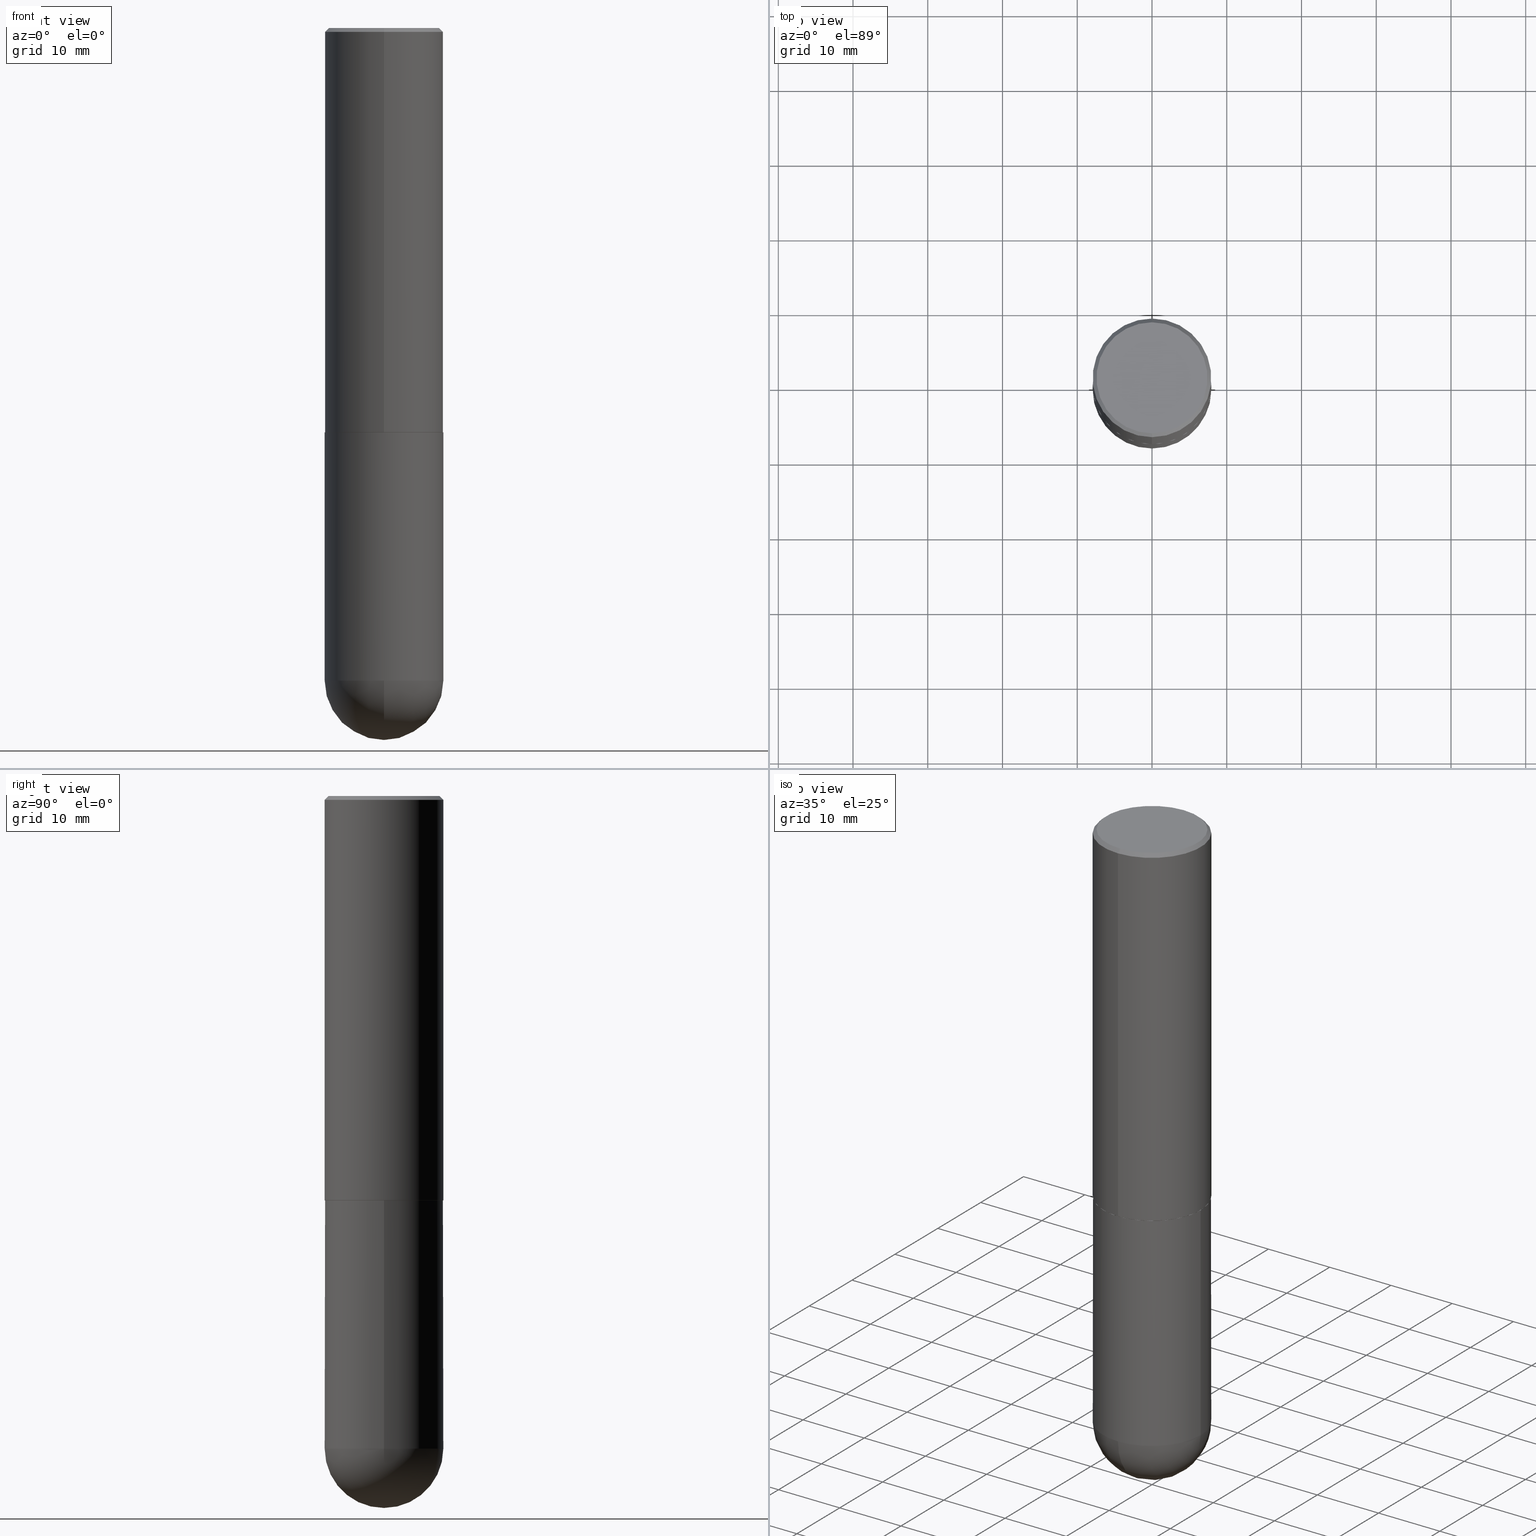
[diagram: canonical four-view strip — front | top / right | iso, engineering-drawing reading convention]
A machine part, canonical four-view strip (front | top / right | iso — engineering-drawing reading convention). The complete STEP part file that produces these views, byte-faithful:
ISO-10303-21;
HEADER;
FILE_DESCRIPTION (( 'STEP AP203' ),
    '1' );
FILE_NAME ('34675.STEP',
    '2024-02-21T18:19:25',
    ( '' ),
    ( '' ),
    'SwSTEP 2.0',
    'SolidWorks 2023',
    '' );
FILE_SCHEMA (( 'CONFIG_CONTROL_DESIGN' ));
ENDSEC;

DATA;
#1 = CARTESIAN_POINT ( 'NONE',  ( 2.182175836776958741E-15, 0.3124999999999999445, -0.02000000000000116268 ) ) ;
#2 = EDGE_CURVE ( 'NONE', #362, #18, #363, .T. ) ;
#3 = ORIENTED_EDGE ( 'NONE', *, *, #68, .T. ) ;
#4 = CYLINDRICAL_SURFACE ( 'NONE', #42, 0.3125000000000000000 ) ;
#5 = DIRECTION ( 'NONE',  ( 6.982962677686265922E-15, 1.000000000000000000, -3.496765431890253764E-15 ) ) ;
#6 = DIRECTION ( 'NONE',  ( -6.982962677686265922E-15, -1.000000000000000000, 3.496765431890253764E-15 ) ) ;
#7 = CC_DESIGN_APPROVAL ( #188, ( #58 ) ) ;
#8 = DIRECTION ( 'NONE',  ( -6.982962677686265922E-15, -1.000000000000000000, 3.507991003100177457E-15 ) ) ;
#9 = ADVANCED_FACE ( 'NONE', ( #399 ), #370, .T. ) ;
#10 = DATE_AND_TIME ( #115, #195 ) ;
#11 = MANIFOLD_SOLID_BREP ( 'Body-Move/Copy2[2]', #194 ) ;
#12 = VERTEX_POINT ( 'NONE', #248 ) ;
#13 = PERSON_AND_ORGANIZATION_ROLE ( 'creator' ) ;
#14 = EDGE_LOOP ( 'NONE', ( #275, #274, #273, #249 ) ) ;
#15 = VECTOR ( 'NONE', #30, 39.37007874015748143 ) ;
#16 = AXIS2_PLACEMENT_3D ( 'NONE', #408, #123, #171 ) ;
#17 = DIRECTION ( 'NONE',  ( -2.445875633042326285E-29, 3.490898739628503130E-15, 1.000000000000000000 ) ) ;
#18 = VERTEX_POINT ( 'NONE', #240 ) ;
#19 = PRODUCT_DEFINITION ( 'UNKNOWN', '', #58, #232 ) ;
#20 = VERTEX_POINT ( 'NONE', #322 ) ;
#21 = APPROVAL_ROLE ( '' ) ;
#22 = ORIENTED_EDGE ( 'NONE', *, *, #158, .F. ) ;
#23 = CIRCLE ( 'NONE', #390, 0.3125000000000000000 ) ;
#24 = ADVANCED_FACE ( 'NONE', ( #128 ), #246, .T. ) ;
#25 = CARTESIAN_POINT ( 'NONE',  ( 2.213340621892763743E-15, 0.3114999999999925606, -2.130000000000001226 ) ) ;
#26 = FACE_OUTER_BOUND ( 'NONE', #130, .T. ) ;
#27 = CARTESIAN_POINT ( 'NONE',  ( 0.3125000000000000000, -2.182175836776958347E-15, 1.523805242436230075E-29 ) ) ;
#28 = AXIS2_PLACEMENT_3D ( 'NONE', #295, #69, #6 ) ;
#29 = LINE ( 'NONE', #356, #150 ) ;
#30 = DIRECTION ( 'NONE',  ( -4.851104656540956386E-15, -0.7071067811865489050, -0.7071067811865461294 ) ) ;
#31 = DIRECTION ( 'NONE',  ( -6.982962677686265133E-15, -1.000000000000000000, 3.490898739628502736E-15 ) ) ;
#32 = AXIS2_PLACEMENT_3D ( 'NONE', #157, #405, #60 ) ;
#33 = DIRECTION ( 'NONE',  ( 4.937700262164540154E-15, 0.7071067811865440200, -0.7071067811865510144 ) ) ;
#34 = AXIS2_PLACEMENT_3D ( 'NONE', #37, #326, #231 ) ;
#35 = CALENDAR_DATE ( 2024, 21, 2 ) ;
#36 = DIRECTION ( 'NONE',  ( -2.445468806185136597E-29, 3.491481338843145583E-15, 1.000000000000000000 ) ) ;
#37 = CARTESIAN_POINT ( 'NONE',  ( -6.259982390047001361E-45, 8.934618073090526033E-31, 2.559403391357417530E-16 ) ) ;
#38 = EDGE_CURVE ( 'NONE', #12, #18, #178, .T. ) ;
#39 = CC_DESIGN_PERSON_AND_ORGANIZATION_ASSIGNMENT ( #67, #122, ( #247 ) ) ;
#40 = CARTESIAN_POINT ( 'NONE',  ( 5.209715098380154570E-29, -7.435614315408711356E-15, -2.129999999999999893 ) ) ;
#41 = AXIS2_PLACEMENT_3D ( 'NONE', #287, #222, #224 ) ;
#42 = AXIS2_PLACEMENT_3D ( 'NONE', #72, #201, #261 ) ;
#43 = DIRECTION ( 'NONE',  ( -2.445468806185136597E-29, 3.491481338843145583E-15, 1.000000000000000000 ) ) ;
#44 = CARTESIAN_POINT ( 'NONE',  ( -0.3125000000000000000, -7.498965127754292608E-15, -2.129999999999999893 ) ) ;
#45 = EDGE_CURVE ( 'NONE', #20, #86, #104, .T. ) ;
#46 = DIRECTION ( 'NONE',  ( -7.105427357601000281E-15, -1.000000000000000000, 0.000000000000000000 ) ) ;
#47 = CC_DESIGN_DATE_AND_TIME_ASSIGNMENT ( #351, #153, ( #247 ) ) ;
#48 = CALENDAR_DATE ( 2024, 21, 2 ) ;
#49 = ORIENTED_EDGE ( 'NONE', *, *, #254, .T. ) ;
#50 = EDGE_CURVE ( 'NONE', #225, #53, #318, .T. ) ;
#51 = CIRCLE ( 'NONE', #271, 0.2924999999999997602 ) ;
#52 = DIRECTION ( 'NONE',  ( -2.445468806185136597E-29, 3.491481338843145583E-15, 1.000000000000000000 ) ) ;
#53 = VERTEX_POINT ( 'NONE', #380 ) ;
#54 = ORIENTED_EDGE ( 'NONE', *, *, #303, .F. ) ;
#55 = ADVANCED_FACE ( 'NONE', ( #353 ), #61, .T. ) ;
#56 = CARTESIAN_POINT ( 'NONE',  ( 4.891751266084669456E-31, -6.981797479257029532E-17, -0.02000000000000006981 ) ) ;
#57 = VECTOR ( 'NONE', #62, 39.37007874015748143 ) ;
#58 = PRODUCT_DEFINITION_FORMATION_WITH_SPECIFIED_SOURCE ( 'ANY', '', #96, .NOT_KNOWN. ) ;
#59 = COORDINATED_UNIVERSAL_TIME_OFFSET ( 5, 0, .BEHIND. ) ;
#60 = DIRECTION ( 'NONE',  ( 1.000000000000000000, -6.982962677686265133E-15, 0.000000000000000000 ) ) ;
#61 = CYLINDRICAL_SURFACE ( 'NONE', #406, 0.3125000000000001665 ) ;
#62 = DIRECTION ( 'NONE',  ( -2.445875633042326005E-29, 3.490898739628503130E-15, 1.000000000000000000 ) ) ;
#63 = CC_DESIGN_APPROVAL ( #371, ( #247 ) ) ;
#64 = LOCAL_TIME ( 13, 19, 25.00000000000000000, #402 ) ;
#65 = DIRECTION ( 'NONE',  ( -1.000000000000000000, 6.982962677686265922E-15, -4.876176775795935793E-29 ) ) ;
#66 = SPHERICAL_SURFACE ( 'NONE', #395, 0.3125000000000002776 ) ;
#67 = PERSON_AND_ORGANIZATION ( #206, #179 ) ;
#68 = EDGE_CURVE ( 'NONE', #172, #86, #352, .T. ) ;
#69 = DIRECTION ( 'NONE',  ( -2.445875633042326285E-29, 3.490898739628503130E-15, 1.000000000000000000 ) ) ;
#70 = LINE ( 'NONE', #1, #204 ) ;
#71 = AXIS2_PLACEMENT_3D ( 'NONE', #219, #288, #349 ) ;
#72 = CARTESIAN_POINT ( 'NONE',  ( 0.000000000000000000, 0.000000000000000000, 0.000000000000000000 ) ) ;
#73 = ADVANCED_FACE ( 'NONE', ( #355 ), #94, .T. ) ;
#74 = CARTESIAN_POINT ( 'NONE',  ( 8.406299021261405930E-29, -1.200196710227331114E-14, -3.437499999999999556 ) ) ;
#75 = LENGTH_MEASURE_WITH_UNIT ( LENGTH_MEASURE( 0.02539999999999999897 ), #210 );
#76 = EDGE_CURVE ( 'NONE', #396, #172, #132, .T. ) ;
#77 = PERSON_AND_ORGANIZATION_ROLE ( 'creator' ) ;
#78 = ORIENTED_EDGE ( 'NONE', *, *, #124, .F. ) ;
#79 = EDGE_LOOP ( 'NONE', ( #78, #203, #306, #366 ) ) ;
#80 =( CONVERSION_BASED_UNIT ( 'INCH', #75 ) LENGTH_UNIT ( ) NAMED_UNIT ( #412 ) );
#81 = ORIENTED_EDGE ( 'NONE', *, *, #76, .F. ) ;
#82 = VECTOR ( 'NONE', #223, 39.37007874015748854 ) ;
#83 = CIRCLE ( 'NONE', #28, 0.3125000000000002776 ) ;
#84 = APPLICATION_PROTOCOL_DEFINITION ( 'international standard', 'config_control_design', 1994, #323 ) ;
#85 = EDGE_LOOP ( 'NONE', ( #109, #311 ) ) ;
#86 = VERTEX_POINT ( 'NONE', #192 ) ;
#87 = APPROVAL_ROLE ( '' ) ;
#88 = DIRECTION ( 'NONE',  ( -2.445875633042326285E-29, 3.490898739628503130E-15, 1.000000000000000000 ) ) ;
#89 = AXIS2_PLACEMENT_3D ( 'NONE', #126, #155, #65 ) ;
#90 = AXIS2_PLACEMENT_3D ( 'NONE', #138, #357, #292 ) ;
#91 = EDGE_CURVE ( 'NONE', #12, #385, #29, .T. ) ;
#92 = DIRECTION ( 'NONE',  ( 1.000000000000000000, -6.982962677686269077E-15, 0.000000000000000000 ) ) ;
#93 = EDGE_CURVE ( 'NONE', #174, #385, #328, .T. ) ;
#94 = SPHERICAL_SURFACE ( 'NONE', #41, 0.3125000000000002776 ) ;
#95 = CARTESIAN_POINT ( 'NONE',  ( 0.000000000000000000, 0.000000000000000000, 0.000000000000000000 ) ) ;
#96 = PRODUCT ( '34675', '34675', '', ( #144 ) ) ;
#97 = APPROVAL_PERSON_ORGANIZATION ( #284, #371, #87 ) ;
#98 = CARTESIAN_POINT ( 'NONE',  ( -6.259982390047001361E-45, 8.934618073090526033E-31, 2.559403391357417530E-16 ) ) ;
#99 = EDGE_CURVE ( 'NONE', #185, #174, #290, .T. ) ;
#100 = DIRECTION ( 'NONE',  ( -6.982962677686265922E-15, -1.000000000000000000, 3.490898739628503130E-15 ) ) ;
#101 = ORIENTED_EDGE ( 'NONE', *, *, #45, .T. ) ;
#102 = FACE_OUTER_BOUND ( 'NONE', #145, .T. ) ;
#103 = ADVANCED_FACE ( 'NONE', ( #26 ), #159, .F. ) ;
#104 = CIRCLE ( 'NONE', #238, 0.3125000000000000000 ) ;
#105 = CARTESIAN_POINT ( 'NONE',  ( -2.182175836776959136E-15, -0.3125000000000001665, 1.090905856133907647E-15 ) ) ;
#106 = LOCAL_TIME ( 13, 19, 25.00000000000000000, #313 ) ;
#107 = CARTESIAN_POINT ( 'NONE',  ( -2.175192874099219479E-15, -0.3115000000000074376, -2.129999999999999005 ) ) ;
#108 = PERSON_AND_ORGANIZATION ( #206, #179 ) ;
#109 = ORIENTED_EDGE ( 'NONE', *, *, #93, .T. ) ;
#110 = AXIS2_PLACEMENT_3D ( 'NONE', #279, #268, #46 ) ;
#111 = AXIS2_PLACEMENT_3D ( 'NONE', #260, #334, #236 ) ;
#112 = ORIENTED_EDGE ( 'NONE', *, *, #264, .T. ) ;
#113 = DIRECTION ( 'NONE',  ( 1.000000000000000000, 0.000000000000000000, 0.000000000000000000 ) ) ;
#114 = ORIENTED_EDGE ( 'NONE', *, *, #68, .F. ) ;
#115 = CALENDAR_DATE ( 2024, 21, 2 ) ;
#116 = ORIENTED_EDGE ( 'NONE', *, *, #99, .T. ) ;
#117 = APPLICATION_PROTOCOL_DEFINITION ( 'international standard', 'config_control_design', 1994, #184 ) ;
#118 = ADVANCED_FACE ( 'NONE', ( #403 ), #129, .F. ) ;
#119 = ORIENTED_EDGE ( 'NONE', *, *, #281, .T. ) ;
#120 = CC_DESIGN_PERSON_AND_ORGANIZATION_ASSIGNMENT ( #305, #13, ( #58 ) ) ;
#121 = ORIENTED_EDGE ( 'NONE', *, *, #76, .T. ) ;
#122 = PERSON_AND_ORGANIZATION_ROLE ( 'classification_officer' ) ;
#123 = DIRECTION ( 'NONE',  ( -2.445468806185136597E-29, 3.491481338843145583E-15, 1.000000000000000000 ) ) ;
#124 = EDGE_CURVE ( 'NONE', #374, #20, #316, .T. ) ;
#125 = CALENDAR_DATE ( 2024, 21, 2 ) ;
#126 = CARTESIAN_POINT ( 'NONE',  ( 2.182175836777010412E-15, 0.3124999999999925615, -2.130000000000001226 ) ) ;
#127 = CIRCLE ( 'NONE', #263, 0.3125000000000000000 ) ;
#128 = FACE_OUTER_BOUND ( 'NONE', #79, .T. ) ;
#129 = PLANE ( 'NONE',  #89 ) ;
#130 = EDGE_LOOP ( 'NONE', ( #49, #119 ) ) ;
#131 = ADVANCED_FACE ( 'NONE', ( #252 ), #407, .T. ) ;
#132 = LINE ( 'NONE', #25, #280 ) ;
#133 = DIRECTION ( 'NONE',  ( -2.445875633042326285E-29, 3.490898739628503130E-15, 1.000000000000000000 ) ) ;
#134 = APPROVAL_DATE_TIME ( #251, #371 ) ;
#135 = FACE_OUTER_BOUND ( 'NONE', #14, .T. ) ;
#136 = DIRECTION ( 'NONE',  ( -2.445875633042326285E-29, 3.490898739628503130E-15, 1.000000000000000000 ) ) ;
#137 = ADVANCED_BREP_SHAPE_REPRESENTATION ( '34675', ( #301, #11, #139 ), #324 ) ;
#138 = CARTESIAN_POINT ( 'NONE',  ( 5.209715098380155691E-29, -7.435614315408712933E-15, -2.130000000000000338 ) ) ;
#139 = AXIS2_PLACEMENT_3D ( 'NONE', #272, #175, #113 ) ;
#140 = CARTESIAN_POINT ( 'NONE',  ( 0.3125000000000000000, -1.190158701378156719E-14, -3.437499999999999556 ) ) ;
#141 = ORIENTED_EDGE ( 'NONE', *, *, #321, .T. ) ;
#142 = CARTESIAN_POINT ( 'NONE',  ( 5.208848557174341041E-29, -7.436855251735900237E-15, -2.129999999999999893 ) ) ;
#143 = ORIENTED_EDGE ( 'NONE', *, *, #38, .F. ) ;
#144 = MECHANICAL_CONTEXT ( 'NONE', #184, 'mechanical' ) ;
#145 = EDGE_LOOP ( 'NONE', ( #149, #180, #101, #339 ) ) ;
#146 =( NAMED_UNIT ( * ) PLANE_ANGLE_UNIT ( ) SI_UNIT ( $, .RADIAN. ) );
#147 = ORIENTED_EDGE ( 'NONE', *, *, #303, .T. ) ;
#148 = PERSON_AND_ORGANIZATION_ROLE ( 'design_owner' ) ;
#149 = ORIENTED_EDGE ( 'NONE', *, *, #281, .F. ) ;
#150 = VECTOR ( 'NONE', #319, 39.37007874015748143 ) ;
#151 = CIRCLE ( 'NONE', #253, 0.3125000000000000000 ) ;
#152 = DIRECTION ( 'NONE',  ( -2.445468806185136597E-29, 3.491481338843145583E-15, 1.000000000000000000 ) ) ;
#153 = DATE_TIME_ROLE ( 'classification_date' ) ;
#154 = CARTESIAN_POINT ( 'NONE',  ( 2.042516583223230962E-15, 0.2924999999999997602, -8.931177117734654401E-16 ) ) ;
#155 = DIRECTION ( 'NONE',  ( 2.438088387897960049E-29, -3.491481338843145188E-15, -1.000000000000000000 ) ) ;
#156 = LOCAL_TIME ( 13, 19, 25.00000000000000000, #392 ) ;
#157 = CARTESIAN_POINT ( 'NONE',  ( 5.208848557174341041E-29, -7.436855251735900237E-15, -2.129999999999999893 ) ) ;
#158 = EDGE_CURVE ( 'NONE', #362, #304, #400, .T. ) ;
#159 = PLANE ( 'NONE',  #270 ) ;
#160 = CARTESIAN_POINT ( 'NONE',  ( 2.220446049250340297E-15, 0.3124999999999928391, -2.129000000000000892 ) ) ;
#161 = SECURITY_CLASSIFICATION_LEVEL ( 'unclassified' ) ;
#162 = AXIS2_PLACEMENT_3D ( 'NONE', #381, #152, #92 ) ;
#163 = CIRCLE ( 'NONE', #16, 0.3125000000000000000 ) ;
#164 = CARTESIAN_POINT ( 'NONE',  ( 2.112346210000094654E-15, 0.2924999999999997602, -7.651475422055944157E-16 ) ) ;
#165 = EDGE_CURVE ( 'NONE', #18, #185, #163, .T. ) ;
#166 = CARTESIAN_POINT ( 'NONE',  ( 5.209715098380155691E-29, -7.435614315408712933E-15, -2.130000000000000338 ) ) ;
#167 = CARTESIAN_POINT ( 'NONE',  ( 5.209715098380155691E-29, -7.435614315408712933E-15, -2.130000000000000338 ) ) ;
#168 = ORIENTED_EDGE ( 'NONE', *, *, #350, .F. ) ;
#169 = CLOSED_SHELL ( 'NONE', ( #9, #73, #237, #118, #312 ) ) ;
#170 = AXIS2_PLACEMENT_3D ( 'NONE', #142, #52, #369 ) ;
#171 = DIRECTION ( 'NONE',  ( 1.000000000000000000, -6.982962677686269077E-15, 0.000000000000000000 ) ) ;
#172 = VERTEX_POINT ( 'NONE', #160 ) ;
#173 = DATE_AND_TIME ( #48, #156 ) ;
#174 = VERTEX_POINT ( 'NONE', #360 ) ;
#175 = DIRECTION ( 'NONE',  ( 0.000000000000000000, 0.000000000000000000, 1.000000000000000000 ) ) ;
#176 = ORIENTED_EDGE ( 'NONE', *, *, #50, .T. ) ;
#177 = APPROVAL_STATUS ( 'not_yet_approved' ) ;
#178 = CIRCLE ( 'NONE', #162, 0.3125000000000000000 ) ;
#179 = ORGANIZATION ( 'UNSPECIFIED', 'UNSPECIFIED', '' ) ;
#180 = ORIENTED_EDGE ( 'NONE', *, *, #124, .T. ) ;
#181 = ADVANCED_FACE ( 'NONE', ( #102 ), #189, .T. ) ;
#182 = ORIENTED_EDGE ( 'NONE', *, *, #38, .T. ) ;
#183 = PERSON_AND_ORGANIZATION ( #206, #179 ) ;
#184 = APPLICATION_CONTEXT ( 'configuration controlled 3d designs of mechanical parts and assemblies' ) ;
#185 = VERTEX_POINT ( 'NONE', #140 ) ;
#186 = CARTESIAN_POINT ( 'NONE',  ( 2.220446049250313475E-15, 0.3125000000000001665, -1.090905856133907647E-15 ) ) ;
#187 = AXIS2_PLACEMENT_3D ( 'NONE', #379, #376, #250 ) ;
#188 = APPROVAL ( #177, 'UNSPECIFIED' ) ;
#189 = CONICAL_SURFACE ( 'NONE', #293, 0.3125000000000000000, 0.7853981633974468357 ) ;
#190 = DIRECTION ( 'NONE',  ( -2.445468806185136877E-29, 3.491481338843145188E-15, 1.000000000000000000 ) ) ;
#191 = DIRECTION ( 'NONE',  ( 5.024295867787889629E-15, 0.7071067811865257013, 0.7071067811865691111 ) ) ;
#192 = CARTESIAN_POINT ( 'NONE',  ( 2.182175836776958741E-15, 0.3124999999999999445, -0.02000000000000116268 ) ) ;
#193 = EDGE_CURVE ( 'NONE', #185, #304, #23, .T. ) ;
#194 = CLOSED_SHELL ( 'NONE', ( #131, #55, #181, #24, #197, #325, #229, #103 ) ) ;
#195 = LOCAL_TIME ( 13, 19, 25.00000000000000000, #397 ) ;
#196 = DIRECTION ( 'NONE',  ( -6.982962677686265133E-15, -1.000000000000000000, 3.490898739628502736E-15 ) ) ;
#197 = ADVANCED_FACE ( 'NONE', ( #388 ), #294, .T. ) ;
#198 = CARTESIAN_POINT ( 'NONE',  ( 2.182175836777041572E-15, 0.3124999999999878431, -3.437500000000000888 ) ) ;
#199 = CIRCLE ( 'NONE', #337, 0.3114999999999999991 ) ;
#200 = DIRECTION ( 'NONE',  ( -6.982962677686265922E-15, -1.000000000000000000, 3.507991003100177457E-15 ) ) ;
#201 = DIRECTION ( 'NONE',  ( -2.445468806185136597E-29, 3.491481338843145583E-15, 1.000000000000000000 ) ) ;
#202 = FACE_OUTER_BOUND ( 'NONE', #242, .T. ) ;
#203 = ORIENTED_EDGE ( 'NONE', *, *, #254, .F. ) ;
#204 = VECTOR ( 'NONE', #33, 39.37007874015748143 ) ;
#205 = DIRECTION ( 'NONE',  ( -2.445875633042326285E-29, 3.490898739628503130E-15, 1.000000000000000000 ) ) ;
#206 = PERSON ( 'UNSPECIFIED', 'UNSPECIFIED', 'UNSPECIFIED', ('UNSPECIFIED'), ('UNSPECIFIED'), ('UNSPECIFIED') ) ;
#207 = APPROVAL_DATE_TIME ( #10, #188 ) ;
#208 = ORIENTED_EDGE ( 'NONE', *, *, #241, .T. ) ;
#209 = CC_DESIGN_PERSON_AND_ORGANIZATION_ASSIGNMENT ( #108, #77, ( #19 ) ) ;
#210 =( LENGTH_UNIT ( ) NAMED_UNIT ( * ) SI_UNIT ( $, .METRE. ) );
#211 = ORIENTED_EDGE ( 'NONE', *, *, #404, .F. ) ;
#212 = DIRECTION ( 'NONE',  ( -6.982962677686265922E-15, -1.000000000000000000, 3.496765431890253764E-15 ) ) ;
#213 = AXIS2_PLACEMENT_3D ( 'NONE', #40, #361, #100 ) ;
#214 = DIRECTION ( 'NONE',  ( 1.000000000000000000, -6.982962677686266711E-15, 4.876176775795936353E-29 ) ) ;
#215 = EDGE_LOOP ( 'NONE', ( #218, #121, #401, #257 ) ) ;
#216 = CARTESIAN_POINT ( 'NONE',  ( -2.075300644325887099E-15, -0.2924999999999997602, 1.277028220477077922E-15 ) ) ;
#217 = ORIENTED_EDGE ( 'NONE', *, *, #382, .F. ) ;
#218 = ORIENTED_EDGE ( 'NONE', *, *, #269, .T. ) ;
#219 = CARTESIAN_POINT ( 'NONE',  ( 8.075179243347521925E-29, -1.247614947041336144E-14, -3.437500000000000000 ) ) ;
#220 = DIRECTION ( 'NONE',  ( -6.982962677686265133E-15, -1.000000000000000000, 3.496765431890256920E-15 ) ) ;
#221 = AXIS2_PLACEMENT_3D ( 'NONE', #166, #136, #200 ) ;
#222 = DIRECTION ( 'NONE',  ( -1.000000000000000000, 6.982962677686265922E-15, -4.883557194083112901E-29 ) ) ;
#223 = DIRECTION ( 'NONE',  ( -4.937700262164378437E-15, -0.7071067811865208164, 0.7071067811865739960 ) ) ;
#224 = DIRECTION ( 'NONE',  ( 6.982962677686265922E-15, 1.000000000000000000, -3.496765431890253764E-15 ) ) ;
#225 = VERTEX_POINT ( 'NONE', #107 ) ;
#226 = AXIS2_PLACEMENT_3D ( 'NONE', #411, #258, #383 ) ;
#227 = ORIENTED_EDGE ( 'NONE', *, *, #165, .T. ) ;
#228 = FACE_OUTER_BOUND ( 'NONE', #277, .T. ) ;
#229 = ADVANCED_FACE ( 'NONE', ( #202 ), #384, .F. ) ;
#230 = CC_DESIGN_PERSON_AND_ORGANIZATION_ASSIGNMENT ( #348, #375, ( #58 ) ) ;
#231 = DIRECTION ( 'NONE',  ( -6.982962677686265133E-15, -1.000000000000000000, 3.490898739628502736E-15 ) ) ;
#232 = DESIGN_CONTEXT ( 'detailed design', #323, 'design' ) ;
#233 = CARTESIAN_POINT ( 'NONE',  ( 8.406299021261405930E-29, -1.200196710227331114E-14, -3.437499999999999556 ) ) ;
#234 = CIRCLE ( 'NONE', #221, 0.3114999999999999991 ) ;
#235 = DIRECTION ( 'NONE',  ( -2.445875633042326005E-29, 3.490898739628503130E-15, 1.000000000000000000 ) ) ;
#236 = DIRECTION ( 'NONE',  ( -6.982962677686265133E-15, -1.000000000000000000, 3.490898739628502736E-15 ) ) ;
#237 = ADVANCED_FACE ( 'NONE', ( #135 ), #66, .T. ) ;
#238 = AXIS2_PLACEMENT_3D ( 'NONE', #56, #88, #220 ) ;
#239 = PERSON_AND_ORGANIZATION ( #206, #179 ) ;
#240 = CARTESIAN_POINT ( 'NONE',  ( -2.220446049250231828E-15, -0.3125000000000124345, -3.437499999999998668 ) ) ;
#241 = EDGE_CURVE ( 'NONE', #396, #225, #234, .T. ) ;
#242 = EDGE_LOOP ( 'NONE', ( #309, #368 ) ) ;
#243 = APPROVAL_DATE_TIME ( #267, #296 ) ;
#244 = CC_DESIGN_PERSON_AND_ORGANIZATION_ASSIGNMENT ( #239, #148, ( #96 ) ) ;
#245 = EDGE_LOOP ( 'NONE', ( #114, #333, #147, #217 ) ) ;
#246 = CONICAL_SURFACE ( 'NONE', #187, 0.3125000000000000000, 0.7853981633974468357 ) ;
#247 = SECURITY_CLASSIFICATION ( '', '', #161 ) ;
#248 = CARTESIAN_POINT ( 'NONE',  ( -0.3125000000000000000, -7.498965127754294186E-15, -3.437499999999999556 ) ) ;
#249 = ORIENTED_EDGE ( 'NONE', *, *, #165, .F. ) ;
#250 = DIRECTION ( 'NONE',  ( 6.982962677686265133E-15, 1.000000000000000000, -3.496765431890256920E-15 ) ) ;
#251 = DATE_AND_TIME ( #35, #299 ) ;
#252 = FACE_OUTER_BOUND ( 'NONE', #215, .T. ) ;
#253 = AXIS2_PLACEMENT_3D ( 'NONE', #393, #17, #343 ) ;
#254 = EDGE_CURVE ( 'NONE', #341, #374, #364, .T. ) ;
#255 = CARTESIAN_POINT ( 'NONE',  ( -2.175192874099219479E-15, -0.3115000000000074376, -2.129999999999999005 ) ) ;
#256 = CARTESIAN_POINT ( 'NONE',  ( -2.143905624303602824E-15, -0.3125000000000000555, -0.01999999999999897693 ) ) ;
#257 = ORIENTED_EDGE ( 'NONE', *, *, #50, .F. ) ;
#258 = DIRECTION ( 'NONE',  ( -2.445875633042326285E-29, 3.490898739628503130E-15, 1.000000000000000000 ) ) ;
#259 = AXIS2_PLACEMENT_3D ( 'NONE', #265, #205, #212 ) ;
#260 = CARTESIAN_POINT ( 'NONE',  ( 0.000000000000000000, 0.000000000000000000, 0.000000000000000000 ) ) ;
#261 = DIRECTION ( 'NONE',  ( 1.000000000000000000, -6.982962677686266711E-15, 4.876176775795936353E-29 ) ) ;
#262 = DIRECTION ( 'NONE',  ( 2.445875633042326285E-29, -3.490898739628503130E-15, -1.000000000000000000 ) ) ;
#263 = AXIS2_PLACEMENT_3D ( 'NONE', #233, #297, #266 ) ;
#264 = EDGE_CURVE ( 'NONE', #53, #172, #83, .T. ) ;
#265 = CARTESIAN_POINT ( 'NONE',  ( 5.207269222747112096E-29, -7.432123416669082885E-15, -2.129000000000000004 ) ) ;
#266 = DIRECTION ( 'NONE',  ( 1.000000000000000000, -6.982962677686269077E-15, 0.000000000000000000 ) ) ;
#267 = DATE_AND_TIME ( #365, #106 ) ;
#268 = DIRECTION ( 'NONE',  ( -1.000000000000000000, 7.105427357601001070E-15, -4.926315508542082329E-29 ) ) ;
#269 = EDGE_CURVE ( 'NONE', #225, #396, #199, .T. ) ;
#270 = AXIS2_PLACEMENT_3D ( 'NONE', #154, #285, #409 ) ;
#271 = AXIS2_PLACEMENT_3D ( 'NONE', #98, #133, #31 ) ;
#272 = CARTESIAN_POINT ( 'NONE',  ( 0.000000000000000000, 0.000000000000000000, 0.000000000000000000 ) ) ;
#273 = ORIENTED_EDGE ( 'NONE', *, *, #193, .F. ) ;
#274 = ORIENTED_EDGE ( 'NONE', *, *, #158, .T. ) ;
#275 = ORIENTED_EDGE ( 'NONE', *, *, #2, .F. ) ;
#276 = APPROVAL_ROLE ( '' ) ;
#277 = EDGE_LOOP ( 'NONE', ( #81, #208, #176, #168 ) ) ;
#278 =( NAMED_UNIT ( * ) SI_UNIT ( $, .STERADIAN. ) SOLID_ANGLE_UNIT ( ) );
#279 = CARTESIAN_POINT ( 'NONE',  ( 8.075179243347521925E-29, -1.247614947041336144E-14, -3.437500000000000000 ) ) ;
#280 = VECTOR ( 'NONE', #191, 39.37007874015748854 ) ;
#281 = EDGE_CURVE ( 'NONE', #374, #341, #51, .T. ) ;
#282 = APPROVAL_PERSON_ORGANIZATION ( #302, #188, #276 ) ;
#283 = ORIENTED_EDGE ( 'NONE', *, *, #45, .F. ) ;
#284 = PERSON_AND_ORGANIZATION ( #206, #179 ) ;
#285 = DIRECTION ( 'NONE',  ( 2.445875633042326005E-29, -3.490898739628503130E-15, -1.000000000000000000 ) ) ;
#286 = SHAPE_DEFINITION_REPRESENTATION ( #335, #137 ) ;
#287 = CARTESIAN_POINT ( 'NONE',  ( 8.075179243347521925E-29, -1.247614947041336144E-14, -3.437500000000000000 ) ) ;
#288 = DIRECTION ( 'NONE',  ( 1.000000000000000000, -6.982962677686265922E-15, 4.883557194083112340E-29 ) ) ;
#289 = CONICAL_SURFACE ( 'NONE', #90, 0.3114999999999999991, 0.7853981633974141952 ) ;
#290 = LINE ( 'NONE', #27, #336 ) ;
#291 = DIRECTION ( 'NONE',  ( -2.445875633042326285E-29, 3.490898739628503130E-15, 1.000000000000000000 ) ) ;
#292 = DIRECTION ( 'NONE',  ( -6.982962677686265922E-15, -1.000000000000000000, 3.507991003100177457E-15 ) ) ;
#293 = AXIS2_PLACEMENT_3D ( 'NONE', #391, #262, #359 ) ;
#294 = CYLINDRICAL_SURFACE ( 'NONE', #111, 0.3125000000000001665 ) ;
#295 = CARTESIAN_POINT ( 'NONE',  ( 5.207269222747112096E-29, -7.432123416669082885E-15, -2.129000000000000004 ) ) ;
#296 = APPROVAL ( #340, 'UNSPECIFIED' ) ;
#297 = DIRECTION ( 'NONE',  ( -2.445468806185136597E-29, 3.491481338843145583E-15, 1.000000000000000000 ) ) ;
#298 = CIRCLE ( 'NONE', #259, 0.3125000000000002776 ) ;
#299 = LOCAL_TIME ( 13, 19, 25.00000000000000000, #59 ) ;
#300 = CARTESIAN_POINT ( 'NONE',  ( 8.075179243347521925E-29, -1.247614947041336144E-14, -3.437500000000000000 ) ) ;
#301 = MANIFOLD_SOLID_BREP ( 'Body-Move/Copy2[1]', #169 ) ;
#302 = PERSON_AND_ORGANIZATION ( #206, #179 ) ;
#303 = EDGE_CURVE ( 'NONE', #53, #20, #387, .T. ) ;
#304 = VERTEX_POINT ( 'NONE', #198 ) ;
#305 = PERSON_AND_ORGANIZATION ( #206, #179 ) ;
#306 = ORIENTED_EDGE ( 'NONE', *, *, #331, .T. ) ;
#307 = DATE_TIME_ROLE ( 'creation_date' ) ;
#308 = EDGE_LOOP ( 'NONE', ( #112, #3, #283, #54 ) ) ;
#309 = ORIENTED_EDGE ( 'NONE', *, *, #269, .F. ) ;
#310 = CARTESIAN_POINT ( 'NONE',  ( 8.852750218548805549E-29, -1.354810228256516798E-14, -3.750000000000000000 ) ) ;
#311 = ORIENTED_EDGE ( 'NONE', *, *, #404, .T. ) ;
#312 = ADVANCED_FACE ( 'NONE', ( #327 ), #4, .T. ) ;
#313 = COORDINATED_UNIVERSAL_TIME_OFFSET ( 5, 0, .BEHIND. ) ;
#314 = ORIENTED_EDGE ( 'NONE', *, *, #93, .F. ) ;
#315 = CC_DESIGN_SECURITY_CLASSIFICATION ( #247, ( #58 ) ) ;
#316 = LINE ( 'NONE', #256, #15 ) ;
#317 = UNCERTAINTY_MEASURE_WITH_UNIT (LENGTH_MEASURE( 1.000000000000000082E-05 ), #80, 'distance_accuracy_value', 'NONE');
#318 = LINE ( 'NONE', #255, #82 ) ;
#319 = DIRECTION ( 'NONE',  ( -2.445468806185136877E-29, 3.491481338843145188E-15, 1.000000000000000000 ) ) ;
#320 = ORIENTED_EDGE ( 'NONE', *, *, #321, .F. ) ;
#321 = EDGE_CURVE ( 'NONE', #304, #12, #127, .T. ) ;
#322 = CARTESIAN_POINT ( 'NONE',  ( -2.143905624303602824E-15, -0.3125000000000000555, -0.01999999999999897693 ) ) ;
#323 = APPLICATION_CONTEXT ( 'configuration controlled 3d designs of mechanical parts and assemblies' ) ;
#324 =( GEOMETRIC_REPRESENTATION_CONTEXT ( 3 ) GLOBAL_UNCERTAINTY_ASSIGNED_CONTEXT ( ( #317 ) ) GLOBAL_UNIT_ASSIGNED_CONTEXT ( ( #80, #146, #278 ) ) REPRESENTATION_CONTEXT ( 'NONE', 'WORKASPACE' ) );
#325 = ADVANCED_FACE ( 'NONE', ( #228 ), #289, .T. ) ;
#326 = DIRECTION ( 'NONE',  ( -2.445875633042326285E-29, 3.490898739628503130E-15, 1.000000000000000000 ) ) ;
#327 = FACE_OUTER_BOUND ( 'NONE', #345, .T. ) ;
#328 = CIRCLE ( 'NONE', #32, 0.3125000000000000000 ) ;
#329 = CIRCLE ( 'NONE', #170, 0.3125000000000000000 ) ;
#330 = DIRECTION ( 'NONE',  ( -2.445875633042326285E-29, 3.490898739628503130E-15, 1.000000000000000000 ) ) ;
#331 = EDGE_CURVE ( 'NONE', #341, #86, #70, .T. ) ;
#332 = DIRECTION ( 'NONE',  ( -1.000000000000000000, 6.982962677686265922E-15, -4.883557194083112901E-29 ) ) ;
#333 = ORIENTED_EDGE ( 'NONE', *, *, #350, .T. ) ;
#334 = DIRECTION ( 'NONE',  ( -2.445875633042326285E-29, 3.490898739628503130E-15, 1.000000000000000000 ) ) ;
#335 = PRODUCT_DEFINITION_SHAPE ( 'NONE', 'NONE',  #19 ) ;
#336 = VECTOR ( 'NONE', #190, 39.37007874015748143 ) ;
#337 = AXIS2_PLACEMENT_3D ( 'NONE', #167, #330, #8 ) ;
#338 = CARTESIAN_POINT ( 'NONE',  ( 0.000000000000000000, 0.000000000000000000, 0.000000000000000000 ) ) ;
#339 = ORIENTED_EDGE ( 'NONE', *, *, #331, .F. ) ;
#340 = APPROVAL_STATUS ( 'not_yet_approved' ) ;
#341 = VERTEX_POINT ( 'NONE', #164 ) ;
#342 = CC_DESIGN_APPROVAL ( #296, ( #19 ) ) ;
#343 = DIRECTION ( 'NONE',  ( -6.982962677686265133E-15, -1.000000000000000000, 3.496765431890256920E-15 ) ) ;
#344 = EDGE_LOOP ( 'NONE', ( #141, #347, #314, #398, #354 ) ) ;
#345 = EDGE_LOOP ( 'NONE', ( #367, #182, #227, #116, #211 ) ) ;
#346 = CARTESIAN_POINT ( 'NONE',  ( 2.216893335571564642E-15, 0.3114999999999925606, -2.130000000000001226 ) ) ;
#347 = ORIENTED_EDGE ( 'NONE', *, *, #91, .T. ) ;
#348 = PERSON_AND_ORGANIZATION ( #206, #179 ) ;
#349 = DIRECTION ( 'NONE',  ( 6.982962677686265922E-15, 1.000000000000000000, 0.000000000000000000 ) ) ;
#350 = EDGE_CURVE ( 'NONE', #172, #53, #298, .T. ) ;
#351 = DATE_AND_TIME ( #125, #64 ) ;
#352 = LINE ( 'NONE', #186, #57 ) ;
#353 = FACE_OUTER_BOUND ( 'NONE', #308, .T. ) ;
#354 = ORIENTED_EDGE ( 'NONE', *, *, #193, .T. ) ;
#355 = FACE_OUTER_BOUND ( 'NONE', #373, .T. ) ;
#356 = CARTESIAN_POINT ( 'NONE',  ( -0.3125000000000000000, 2.220446049250313081E-15, -1.537167215704658232E-29 ) ) ;
#357 = DIRECTION ( 'NONE',  ( -2.445875633042326285E-29, 3.490898739628503130E-15, 1.000000000000000000 ) ) ;
#358 = DIRECTION ( 'NONE',  ( 1.000000000000000000, -6.982962677686269077E-15, 0.000000000000000000 ) ) ;
#359 = DIRECTION ( 'NONE',  ( 6.982962677686265133E-15, 1.000000000000000000, -3.496765431890256920E-15 ) ) ;
#360 = CARTESIAN_POINT ( 'NONE',  ( 0.3125000000000000000, -9.619031088512858584E-15, -2.129999999999999893 ) ) ;
#361 = DIRECTION ( 'NONE',  ( -2.445875633042326005E-29, 3.490898739628503130E-15, 1.000000000000000000 ) ) ;
#362 = VERTEX_POINT ( 'NONE', #310 ) ;
#363 = CIRCLE ( 'NONE', #110, 0.3125000000000002776 ) ;
#364 = CIRCLE ( 'NONE', #34, 0.2924999999999997602 ) ;
#365 = CALENDAR_DATE ( 2024, 21, 2 ) ;
#366 = ORIENTED_EDGE ( 'NONE', *, *, #382, .T. ) ;
#367 = ORIENTED_EDGE ( 'NONE', *, *, #91, .F. ) ;
#368 = ORIENTED_EDGE ( 'NONE', *, *, #241, .F. ) ;
#369 = DIRECTION ( 'NONE',  ( 1.000000000000000000, -6.982962677686265133E-15, 0.000000000000000000 ) ) ;
#370 = CYLINDRICAL_SURFACE ( 'NONE', #389, 0.3125000000000000000 ) ;
#371 = APPROVAL ( #377, 'UNSPECIFIED' ) ;
#372 = APPROVAL_PERSON_ORGANIZATION ( #183, #296, #21 ) ;
#373 = EDGE_LOOP ( 'NONE', ( #22, #394, #143, #320 ) ) ;
#374 = VERTEX_POINT ( 'NONE', #216 ) ;
#375 = PERSON_AND_ORGANIZATION_ROLE ( 'design_supplier' ) ;
#376 = DIRECTION ( 'NONE',  ( 2.445875633042326285E-29, -3.490898739628503130E-15, -1.000000000000000000 ) ) ;
#377 = APPROVAL_STATUS ( 'not_yet_approved' ) ;
#378 = VECTOR ( 'NONE', #235, 39.37007874015748143 ) ;
#379 = CARTESIAN_POINT ( 'NONE',  ( 4.891751266084669456E-31, -6.981797479257029532E-17, -0.02000000000000006981 ) ) ;
#380 = CARTESIAN_POINT ( 'NONE',  ( -2.182175836776907860E-15, -0.3125000000000077161, -2.128999999999998671 ) ) ;
#381 = CARTESIAN_POINT ( 'NONE',  ( 8.406299021261405930E-29, -1.200196710227331114E-14, -3.437499999999999556 ) ) ;
#382 = EDGE_CURVE ( 'NONE', #86, #20, #151, .T. ) ;
#383 = DIRECTION ( 'NONE',  ( -6.982962677686265922E-15, -1.000000000000000000, 3.507991003100177457E-15 ) ) ;
#384 = PLANE ( 'NONE',  #213 ) ;
#385 = VERTEX_POINT ( 'NONE', #44 ) ;
#386 = PRODUCT_RELATED_PRODUCT_CATEGORY ( 'detail', '', ( #96 ) ) ;
#387 = LINE ( 'NONE', #105, #378 ) ;
#388 = FACE_OUTER_BOUND ( 'NONE', #245, .T. ) ;
#389 = AXIS2_PLACEMENT_3D ( 'NONE', #338, #43, #214 ) ;
#390 = AXIS2_PLACEMENT_3D ( 'NONE', #74, #36, #358 ) ;
#391 = CARTESIAN_POINT ( 'NONE',  ( 4.891751266084669456E-31, -6.981797479257029532E-17, -0.02000000000000006981 ) ) ;
#392 = COORDINATED_UNIVERSAL_TIME_OFFSET ( 5, 0, .BEHIND. ) ;
#393 = CARTESIAN_POINT ( 'NONE',  ( 4.891751266084669456E-31, -6.981797479257029532E-17, -0.02000000000000006981 ) ) ;
#394 = ORIENTED_EDGE ( 'NONE', *, *, #2, .T. ) ;
#395 = AXIS2_PLACEMENT_3D ( 'NONE', #300, #332, #5 ) ;
#396 = VERTEX_POINT ( 'NONE', #346 ) ;
#397 = COORDINATED_UNIVERSAL_TIME_OFFSET ( 5, 0, .BEHIND. ) ;
#398 = ORIENTED_EDGE ( 'NONE', *, *, #99, .F. ) ;
#399 = FACE_OUTER_BOUND ( 'NONE', #344, .T. ) ;
#400 = CIRCLE ( 'NONE', #71, 0.3125000000000002776 ) ;
#401 = ORIENTED_EDGE ( 'NONE', *, *, #264, .F. ) ;
#402 = COORDINATED_UNIVERSAL_TIME_OFFSET ( 5, 0, .BEHIND. ) ;
#403 = FACE_OUTER_BOUND ( 'NONE', #85, .T. ) ;
#404 = EDGE_CURVE ( 'NONE', #385, #174, #329, .T. ) ;
#405 = DIRECTION ( 'NONE',  ( -2.445468806185136597E-29, 3.491481338843145583E-15, 1.000000000000000000 ) ) ;
#406 = AXIS2_PLACEMENT_3D ( 'NONE', #95, #291, #196 ) ;
#407 = CONICAL_SURFACE ( 'NONE', #226, 0.3114999999999999991, 0.7853981633974141952 ) ;
#408 = CARTESIAN_POINT ( 'NONE',  ( 8.406299021261405930E-29, -1.200196710227331114E-14, -3.437499999999999556 ) ) ;
#409 = DIRECTION ( 'NONE',  ( 6.982962677686265922E-15, 1.000000000000000000, -3.490898739628503130E-15 ) ) ;
#410 = CC_DESIGN_DATE_AND_TIME_ASSIGNMENT ( #173, #307, ( #19 ) ) ;
#411 = CARTESIAN_POINT ( 'NONE',  ( 5.209715098380155691E-29, -7.435614315408712933E-15, -2.130000000000000338 ) ) ;
#412 = DIMENSIONAL_EXPONENTS ( 1.000000000000000000, 0.000000000000000000, 0.000000000000000000, 0.000000000000000000, 0.000000000000000000, 0.000000000000000000, 0.000000000000000000 ) ;
ENDSEC;
END-ISO-10303-21;
